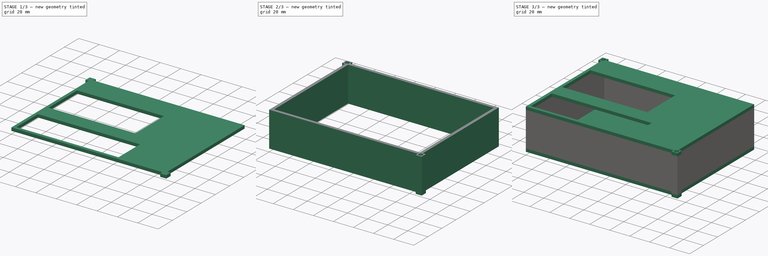
[diagram: build sequence overview — one tinted view per stage of 3, left to right]
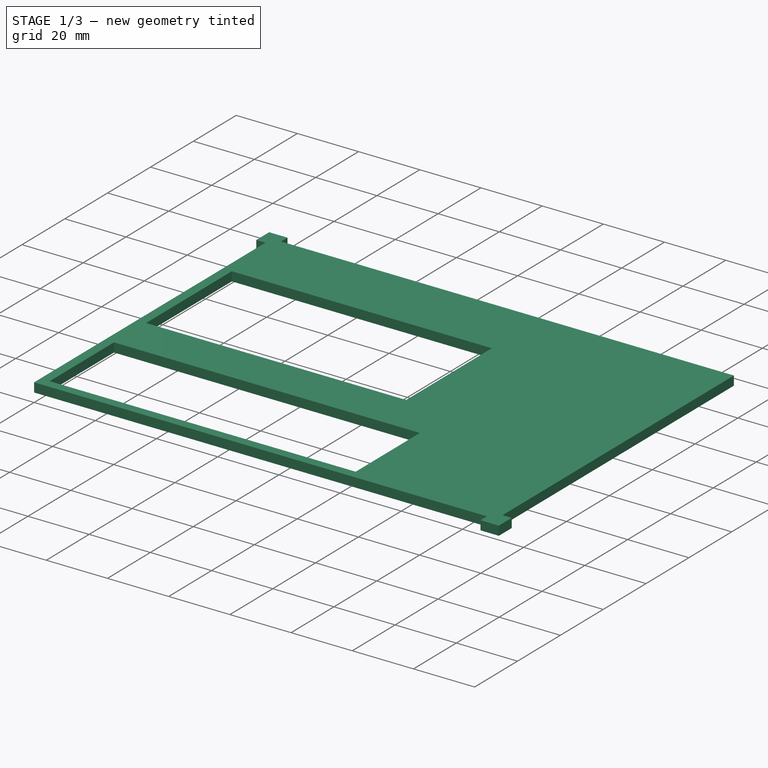
[diagram: stage 1 of 3 — iso view after this stage's code; geometry added in this stage tinted green]
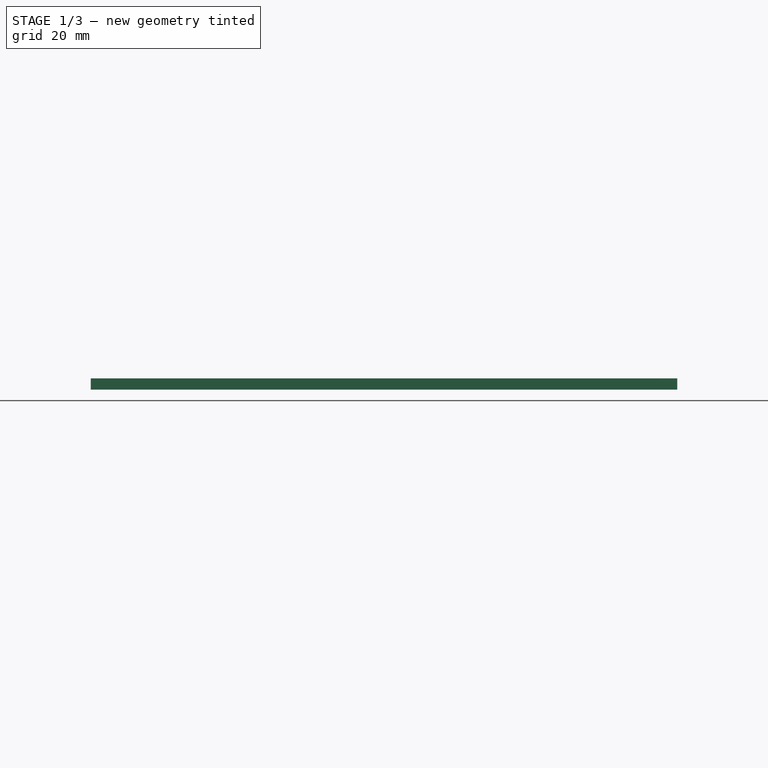
[diagram: stage 1 of 3 — front view after this stage's code; geometry added in this stage tinted green]
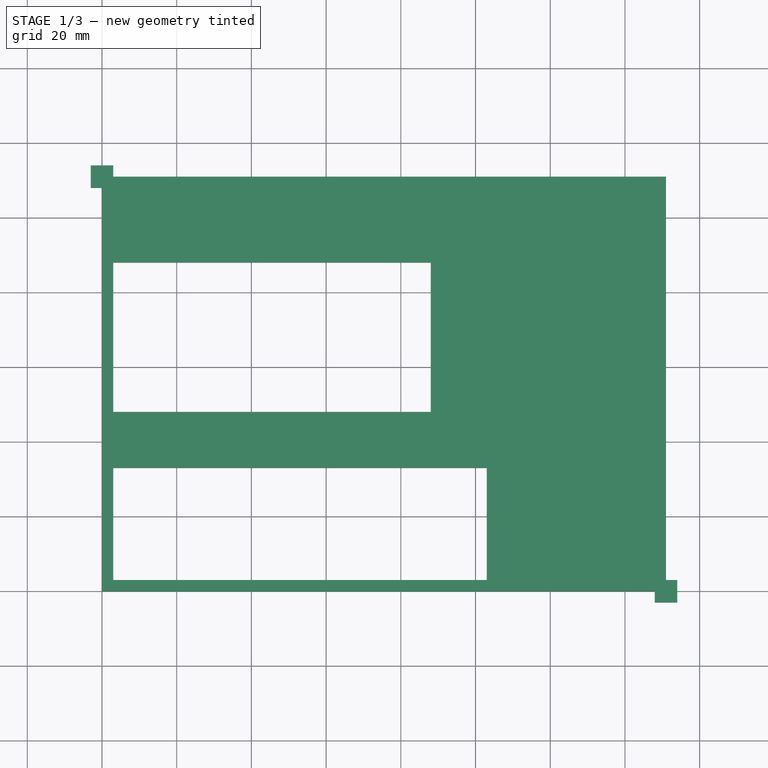
[diagram: stage 1 of 3 — top view after this stage's code; geometry added in this stage tinted green]
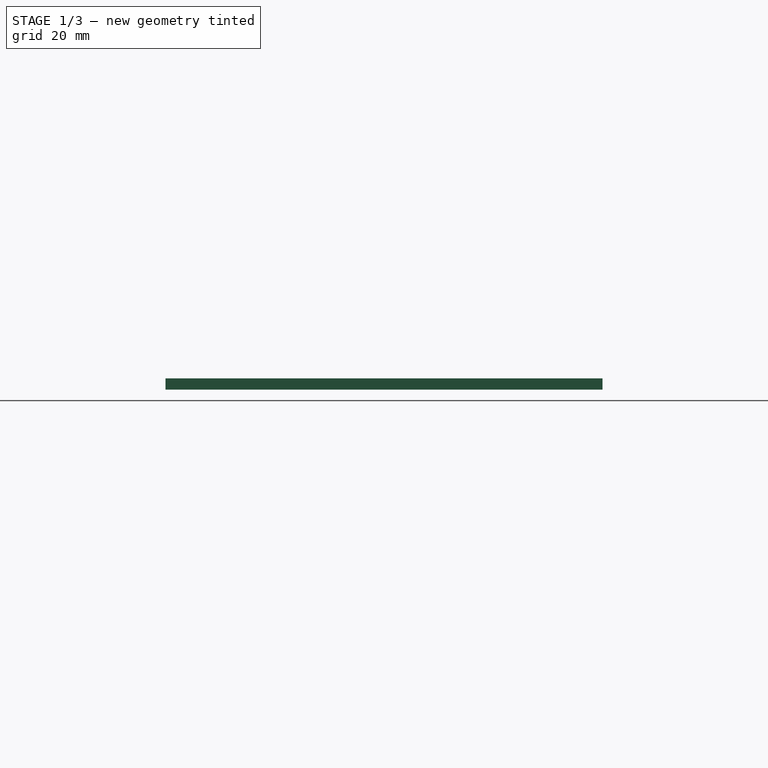
[diagram: stage 1 of 3 — right view after this stage's code; geometry added in this stage tinted green]
FCSTD DOCUMENT  (FreeCAD 0.20R29177 +426 (Git))
Label: FobCase
License: All rights reserved
LicenseURL: http://en.wikipedia.org/wiki/All_rights_reserved
objects: Part::Extrusion×5, Sketcher::SketchObject×4, Part::Cut×2, Part::MultiFuse×1
note: 12 computed .brp shape members not serialized (recipe doc carries the construction recipe); baked Part::Feature solids carry a one-line shape summary decoded from their .brp

FEATURE [Sketcher::SketchObject] Sketch
  FullyConstrained = true
  sketch-geometry (24):
    g0: LineSegment StartX=3 StartY=3 StartZ=0 EndX=148 EndY=3 EndZ=0
    g1: LineSegment StartX=148 StartY=3 StartZ=0 EndX=148 EndY=108 EndZ=0
    g2: LineSegment StartX=148 StartY=108 StartZ=0 EndX=3 EndY=108 EndZ=0
    g3: LineSegment StartX=3 StartY=108 StartZ=0 EndX=3 EndY=3 EndZ=0
    g4: LineSegment StartX=154 StartY=3 StartZ=0 EndX=154 EndY=-3 EndZ=0
    g5: LineSegment StartX=154 StartY=-3 StartZ=0 EndX=148 EndY=-3 EndZ=0
    g6: LineSegment StartX=148 StartY=-3 StartZ=0 EndX=148 EndY=0 EndZ=0
    g7: LineSegment StartX=148 StartY=0 StartZ=0 EndX=148 EndY=3 EndZ=0
    g8: LineSegment StartX=0 StartY=0 StartZ=0 EndX=148 EndY=0 EndZ=0
    g9: LineSegment StartX=148 StartY=0 StartZ=0 EndX=151 EndY=0 EndZ=0
    g10: LineSegment StartX=151 StartY=0 StartZ=0 EndX=151 EndY=3 EndZ=0
    g11: LineSegment StartX=151 StartY=3 StartZ=0 EndX=151 EndY=111 EndZ=0
    g12: LineSegment StartX=148 StartY=3 StartZ=0 EndX=151 EndY=3 EndZ=0
    g13: LineSegment StartX=151 StartY=3 StartZ=0 EndX=154 EndY=3 EndZ=0
    g14: LineSegment StartX=-3 StartY=108 StartZ=0 EndX=-3 EndY=114 EndZ=0
    g15: LineSegment StartX=-3 StartY=114 StartZ=0 EndX=3 EndY=114 EndZ=0
    g16: LineSegment StartX=3 StartY=108 StartZ=0 EndX=0 EndY=108 EndZ=0
    g17: LineSegment StartX=0 StartY=108 StartZ=0 EndX=-3 EndY=108 EndZ=0
    g18: LineSegment StartX=0 StartY=111 StartZ=0 EndX=0 EndY=108 EndZ=0
    g19: LineSegment StartX=0 StartY=108 StartZ=0 EndX=0 EndY=0 EndZ=0
    g20: LineSegment StartX=151 StartY=111 StartZ=0 EndX=3 EndY=111 EndZ=0
    g21: LineSegment StartX=3 StartY=111 StartZ=0 EndX=0 EndY=111 EndZ=0
    g22: LineSegment StartX=3 StartY=114 StartZ=0 EndX=3 EndY=111 EndZ=0
    g23: LineSegment StartX=3 StartY=111 StartZ=0 EndX=3 EndY=108 EndZ=0
  constraints (67):
    c: Coincident(g9,g10)
    c: Coincident(g11,g20)
    c: Coincident(g21,g18)
    c: Coincident(g19,g8)
    c: Coincident(g8,g-1)
    c: Coincident(g0,g1)
    c: Coincident(g1,g2)
    c: Coincident(g2,g3)
    c: Coincident(g3,g0)
    c: Horizontal(g0)
    c: Horizontal(g2)
    c: Vertical(g1)
    c: Vertical(g3)
    c: Distance(g0) = 145
    c: Distance(g3) = 105
    c: DistanceX(g8,g0) = 3
    c: DistanceY(g8,g0) = 3
    c: DistanceY(g1,g11) = 3
    c: DistanceX(g1,g11) = 3
    c: Coincident(g13,g4)
    c: Coincident(g4,g5)
    c: Coincident(g5,g6)
    c: Coincident(g7,g12)
    c: Horizontal(g5)
    c: Vertical(g4)
    c: Coincident(g12,g0)
    c: Coincident(g6,g7)
    c: Vertical(g6)
    c: Vertical(g7)
    c: Distance(g6,g7) = 6
    c: Coincident(g8,g9)
    c: Horizontal(g8)
    c: Horizontal(g9)
    c: Coincident(g10,g11)
    c: Vertical(g10)
    c: Vertical(g11)
    c: Coincident(g12,g13)
    c: Horizontal(g12)
    c: Horizontal(g13)
    c: Distance(g12,g13) = 6
    c: PointOnObject(g12,g11)
    c: PointOnObject(g10,g13)
    c: PointOnObject(g8,g6)
    c: PointOnObject(g6,g9)
    c: Coincident(g17,g14)
    c: Coincident(g14,g15)
    c: Coincident(g15,g22)
    c: Coincident(g23,g16)
    c: Horizontal(g15)
    c: Vertical(g14)
    c: Coincident(g16,g2)
    c: Coincident(g16,g17)
    c: Horizontal(g16)
    c: Horizontal(g17)
    c: Distance(g16,g17) = 6
    c: Coincident(g18,g19)
    c: Vertical(g18)
    c: Vertical(g19)
    c: Coincident(g20,g21)
    c: Horizontal(g20)
    c: Horizontal(g21)
    c: Coincident(g22,g23)
    c: Vertical(g22)
    c: Vertical(g23)
    c: Distance(g22,g23) = 6
    c: Coincident(g22,g20)
    c: Coincident(g16,g18)
FEATURE [Part::Extrusion] Extrude  label="Base"
  Base = -> Sketch
  Dir = (0,0,1)
  DirMode = 2
  FaceMakerClass = Part::FaceMakerBullseye
  LengthFwd = 3
  LengthRev = 0
  Solid = true
  Symmetric = false
FEATURE [Sketcher::SketchObject] Sketch001
  ExternalGeometry = -> [Extrude]
  FullyConstrained = true
  MapMode = 5
  Placement = pos=(0,0,3) rot=(0,0,1;0rad)
  Support = -> [Extrude]
  sketch-geometry (24):
    g0: LineSegment StartX=3 StartY=3 StartZ=0 EndX=148 EndY=3 EndZ=0
    g1: LineSegment StartX=148 StartY=3 StartZ=0 EndX=148 EndY=108 EndZ=0
    g2: LineSegment StartX=148 StartY=108 StartZ=0 EndX=3 EndY=108 EndZ=0
    g3: LineSegment StartX=3 StartY=108 StartZ=0 EndX=3 EndY=3 EndZ=0
    g4: LineSegment StartX=154 StartY=3 StartZ=0 EndX=154 EndY=-3 EndZ=0
    g5: LineSegment StartX=154 StartY=-3 StartZ=0 EndX=148 EndY=-3 EndZ=0
    g6: LineSegment StartX=0 StartY=0 StartZ=0 EndX=148 EndY=0 EndZ=0
    g7: LineSegment StartX=148 StartY=0 StartZ=0 EndX=151 EndY=0 EndZ=0
    g8: LineSegment StartX=148 StartY=-3 StartZ=0 EndX=148 EndY=0 EndZ=0
    g9: LineSegment StartX=148 StartY=0 StartZ=0 EndX=148 EndY=3 EndZ=0
    g10: LineSegment StartX=148 StartY=3 StartZ=0 EndX=151 EndY=3 EndZ=0
    g11: LineSegment StartX=151 StartY=3 StartZ=0 EndX=154 EndY=3 EndZ=0
    g12: LineSegment StartX=151 StartY=0 StartZ=0 EndX=151 EndY=3 EndZ=0
    g13: LineSegment StartX=151 StartY=3 StartZ=0 EndX=151 EndY=111 EndZ=0
    g14: LineSegment StartX=-3 StartY=108 StartZ=0 EndX=-3 EndY=114 EndZ=0
    g15: LineSegment StartX=-3 StartY=114 StartZ=0 EndX=3 EndY=114 EndZ=0
    g16: LineSegment StartX=3 StartY=114 StartZ=0 EndX=3 EndY=111 EndZ=0
    g17: LineSegment StartX=3 StartY=111 StartZ=0 EndX=3 EndY=108 EndZ=0
    g18: LineSegment StartX=151 StartY=111 StartZ=0 EndX=3 EndY=111 EndZ=0
    g19: LineSegment StartX=3 StartY=111 StartZ=0 EndX=0 EndY=111 EndZ=0
    g20: LineSegment StartX=0 StartY=111 StartZ=0 EndX=0 EndY=108 EndZ=0
    g21: LineSegment StartX=0 StartY=108 StartZ=0 EndX=0 EndY=0 EndZ=0
    g22: LineSegment StartX=3 StartY=108 StartZ=0 EndX=0 EndY=108 EndZ=0
    g23: LineSegment StartX=0 StartY=108 StartZ=0 EndX=-3 EndY=108 EndZ=0
  constraints (62):
    c: Coincident(g7,g12)
    c: Coincident(g13,g18)
    c: Coincident(g19,g20)
    c: Coincident(g21,g6)
    c: Coincident(g6,g-1)
    c: Coincident(g13,g-3)
    c: Coincident(g0,g1)
    c: Coincident(g1,g2)
    c: Coincident(g2,g3)
    c: Coincident(g3,g0)
    c: Horizontal(g0)
    c: Horizontal(g2)
    c: Vertical(g1)
    c: Vertical(g3)
    c: DistanceY(g1,g13) = 3
    c: DistanceX(g1,g13) = 3
    c: DistanceY(g6,g0) = 3
    c: DistanceX(g6,g0) = 3
    c: Coincident(g11,g4)
    c: Coincident(g4,g5)
    c: Coincident(g5,g8)
    c: Coincident(g9,g10)
    c: Horizontal(g5)
    c: Vertical(g4)
    c: Coincident(g10,g0)
    c: Coincident(g4,g-4)
    c: Coincident(g6,g7)
    c: Horizontal(g6)
    c: Horizontal(g7)
    c: Coincident(g8,g9)
    c: Vertical(g8)
    c: Vertical(g9)
    c: Coincident(g10,g11)
    c: Horizontal(g10)
    c: Horizontal(g11)
    c: Coincident(g12,g13)
    c: Vertical(g12)
    c: Vertical(g13)
    c: Coincident(g12,g10)
    c: Coincident(g6,g8)
    c: Coincident(g23,g14)
    c: Coincident(g14,g15)
    c: Coincident(g15,g16)
    c: Coincident(g17,g22)
    c: Horizontal(g15)
    c: Vertical(g14)
    c: Coincident(g22,g2)
    c: Coincident(g14,g-5)
    c: Coincident(g16,g17)
    c: Vertical(g16)
    c: Vertical(g17)
    c: Coincident(g18,g19)
    c: Horizontal(g18)
    c: Horizontal(g19)
    c: Coincident(g20,g21)
    c: Vertical(g20)
    c: Vertical(g21)
    c: Coincident(g22,g23)
    c: Horizontal(g22)
    c: Horizontal(g23)
    c: Coincident(g22,g20)
    c: Coincident(g16,g18)
FEATURE [Part::Extrusion] Extrude001  label="Walls"
  Base = -> Sketch001
  Dir = (0,0,1)
  DirMode = 2
  FaceMakerClass = Part::FaceMakerBullseye
  LengthFwd = 35
  LengthRev = 0
  Solid = true
  Symmetric = false
FEATURE [Sketcher::SketchObject] Sketch002
  ExternalGeometry = -> [Extrude001]
  FullyConstrained = true
  MapMode = 5
  Placement = pos=(0,0,38) rot=(0,0,1;0rad)
  Support = -> [Extrude001]
  sketch-geometry (28):
    g0: LineSegment StartX=3 StartY=3 StartZ=0 EndX=103 EndY=3 EndZ=0
    g1: LineSegment StartX=103 StartY=3 StartZ=0 EndX=103 EndY=33 EndZ=0
    g2: LineSegment StartX=103 StartY=33 StartZ=0 EndX=3 EndY=33 EndZ=0
    g3: LineSegment StartX=3 StartY=33 StartZ=0 EndX=3 EndY=3 EndZ=0
    g4: LineSegment StartX=3 StartY=48 StartZ=0 EndX=88 EndY=48 EndZ=0
    g5: LineSegment StartX=88 StartY=48 StartZ=0 EndX=88 EndY=88 EndZ=0
    g6: LineSegment StartX=88 StartY=88 StartZ=0 EndX=3 EndY=88 EndZ=0
    g7: LineSegment StartX=3 StartY=88 StartZ=0 EndX=3 EndY=48 EndZ=0
    g8: LineSegment StartX=154 StartY=3 StartZ=0 EndX=154 EndY=-3 EndZ=0
    g9: LineSegment StartX=154 StartY=-3 StartZ=0 EndX=148 EndY=-3 EndZ=0
    g10: LineSegment StartX=148 StartY=-3 StartZ=0 EndX=148 EndY=0 EndZ=0
    g11: LineSegment StartX=148 StartY=0 StartZ=0 EndX=148 EndY=3 EndZ=0
    g12: LineSegment StartX=151 StartY=0 StartZ=0 EndX=151 EndY=3 EndZ=0
    g13: LineSegment StartX=151 StartY=3 StartZ=0 EndX=151 EndY=111 EndZ=0
    g14: LineSegment StartX=148 StartY=3 StartZ=0 EndX=151 EndY=3 EndZ=0
    g15: LineSegment StartX=151 StartY=3 StartZ=0 EndX=154 EndY=3 EndZ=0
    g16: LineSegment StartX=0 StartY=0 StartZ=0 EndX=148 EndY=0 EndZ=0
    g17: LineSegment StartX=148 StartY=0 StartZ=0 EndX=151 EndY=0 EndZ=0
    g18: LineSegment StartX=-3 StartY=108 StartZ=0 EndX=-3 EndY=114 EndZ=0
    g19: LineSegment StartX=-3 StartY=114 StartZ=0 EndX=3 EndY=114 EndZ=0
    g20: LineSegment StartX=151 StartY=111 StartZ=0 EndX=3 EndY=111 EndZ=0
    g21: LineSegment StartX=3 StartY=111 StartZ=0 EndX=0 EndY=111 EndZ=0
    g22: LineSegment StartX=3 StartY=114 StartZ=0 EndX=3 EndY=111 EndZ=0
    g23: LineSegment StartX=3 StartY=111 StartZ=0 EndX=3 EndY=108 EndZ=0
    g24: LineSegment StartX=3 StartY=108 StartZ=0 EndX=0 EndY=108 EndZ=0
    g25: LineSegment StartX=0 StartY=108 StartZ=0 EndX=-3 EndY=108 EndZ=0
    g26: LineSegment StartX=0 StartY=111 StartZ=0 EndX=0 EndY=108 EndZ=0
    g27: LineSegment StartX=0 StartY=108 StartZ=0 EndX=0 EndY=0 EndZ=0
  constraints (73):
    c: Coincident(g17,g12)
    c: Coincident(g13,g20)
    c: Coincident(g21,g26)
    c: Coincident(g27,g16)
    c: Coincident(g0,g1)
    c: Coincident(g1,g2)
    c: Coincident(g2,g3)
    c: Coincident(g3,g0)
    c: Horizontal(g0)
    c: Horizontal(g2)
    c: Vertical(g1)
    c: Vertical(g3)
    c: Distance(g2) = 100
    c: Distance(g1) = 30
    c: Coincident(g4,g5)
    c: Coincident(g5,g6)
    c: Coincident(g6,g7)
    c: Coincident(g7,g4)
    c: Horizontal(g4)
    c: Horizontal(g6)
    c: Vertical(g5)
    c: Vertical(g7)
    c: Distance(g6) = 85
    c: Distance(g5) = 40
    c: DistanceY(g0,g4) = 45
    c: Coincident(g16,g-5)
    c: Coincident(g0,g-6)
    c: Coincident(g13,g-7)
    c: PointOnObject(g4,g-6)
    c: Coincident(g15,g8)
    c: Coincident(g8,g9)
    c: Coincident(g9,g10)
    c: Coincident(g11,g14)
    c: Horizontal(g9)
    c: Vertical(g8)
    c: Coincident(g14,g-8)
    c: Coincident(g8,g-3)
    c: Coincident(g10,g11)
    c: Vertical(g10)
    c: Vertical(g11)
    c: Coincident(g12,g13)
    c: Vertical(g12)
    c: Vertical(g13)
    c: Coincident(g14,g15)
    c: Horizontal(g14)
    c: Horizontal(g15)
    c: Coincident(g16,g17)
    c: Horizontal(g16)
    c: Horizontal(g17)
    c: Coincident(g16,g10)
    c: Coincident(g12,g14)
    c: Coincident(g25,g18)
    c: Coincident(g18,g19)
    c: Coincident(g19,g22)
    c: Coincident(g23,g24)
    c: Horizontal(g19)
    c: Vertical(g18)
    c: Coincident(g24,g-6)
    c: Coincident(g18,g-4)
    c: Coincident(g20,g21)
    c: Horizontal(g20)
    c: Horizontal(g21)
    c: Coincident(g22,g23)
    c: Vertical(g22)
    c: Vertical(g23)
    c: Coincident(g24,g25)
    c: Horizontal(g24)
    c: Horizontal(g25)
    c: Coincident(g26,g27)
    c: Vertical(g26)
    c: Vertical(g27)
    c: Coincident(g20,g22)
    c: Coincident(g24,g26)
FEATURE [Part::Extrusion] Extrude002  label="Top"
  Base = -> Sketch002
  Dir = (0,0,1)
  DirMode = 2
  FaceMakerClass = Part::FaceMakerBullseye
  LengthFwd = 3
  LengthRev = 0
  Solid = true
  Symmetric = false
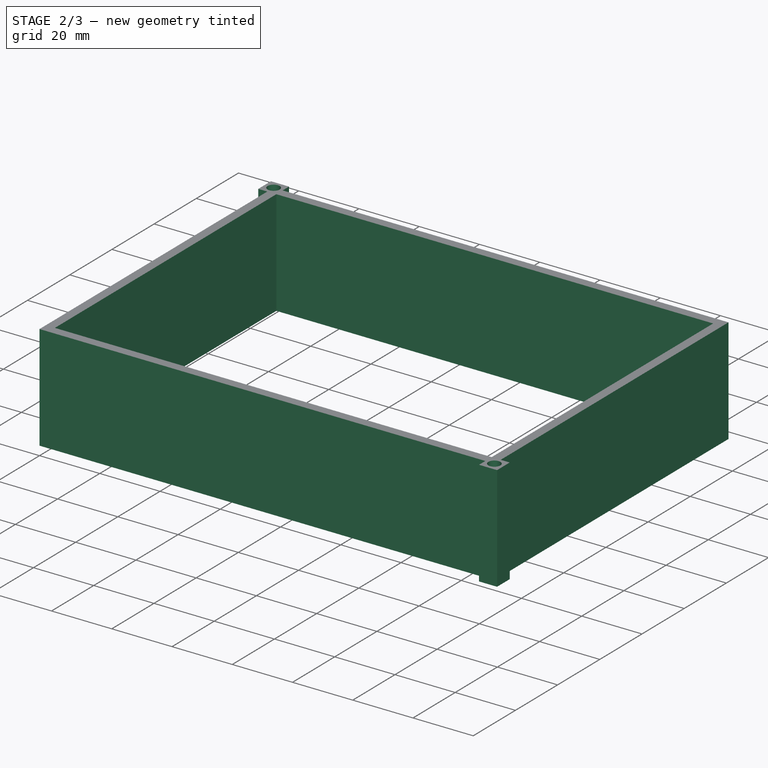
[diagram: stage 2 of 3 — iso view after this stage's code; geometry added in this stage tinted green]
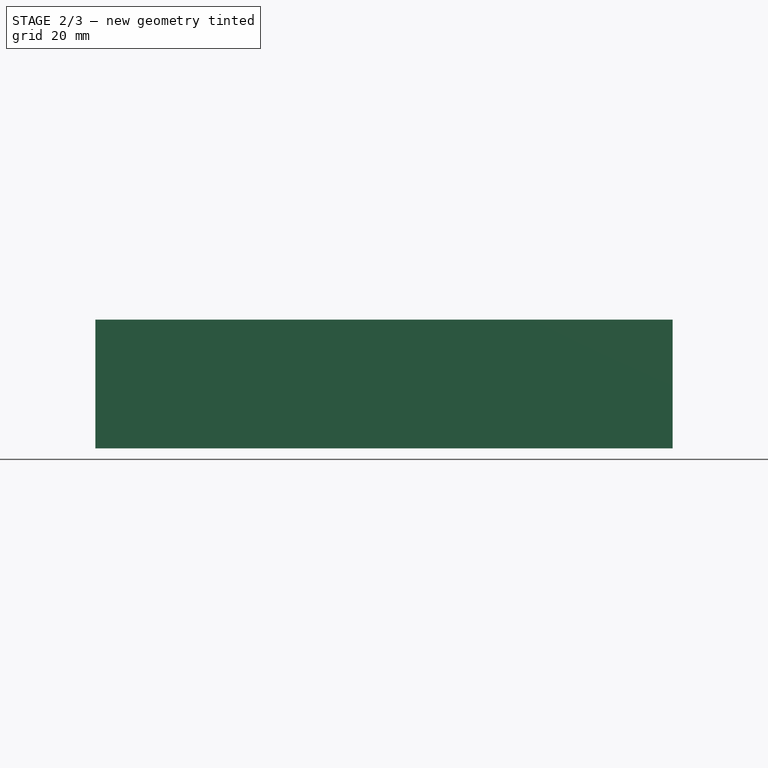
[diagram: stage 2 of 3 — front view after this stage's code; geometry added in this stage tinted green]
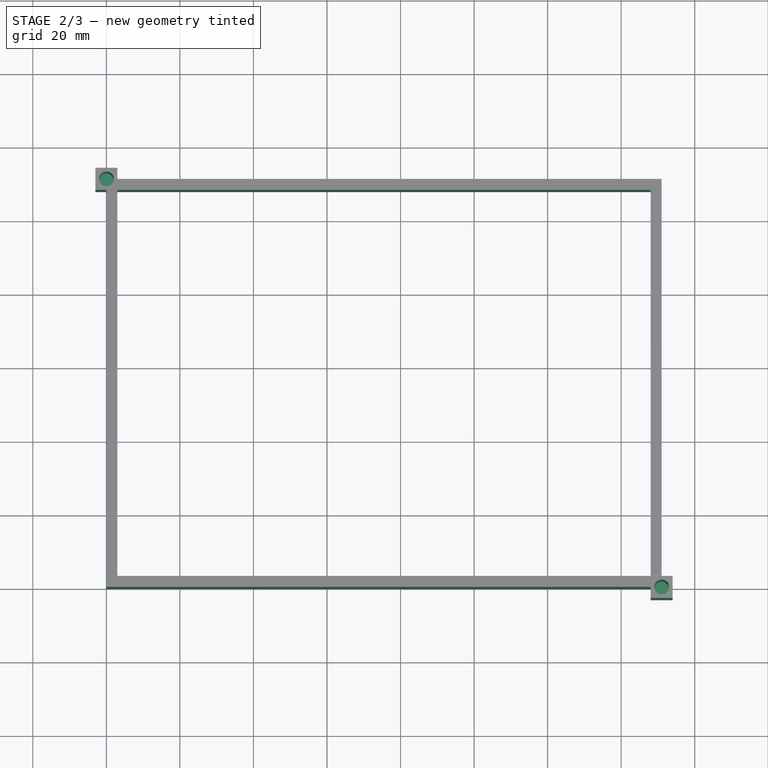
[diagram: stage 2 of 3 — top view after this stage's code; geometry added in this stage tinted green]
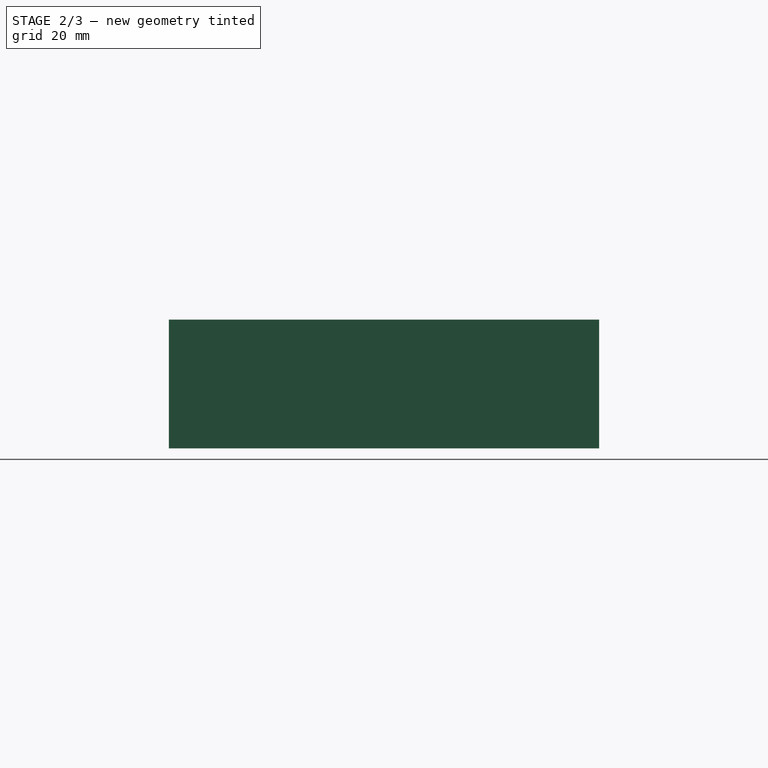
[diagram: stage 2 of 3 — right view after this stage's code; geometry added in this stage tinted green]
FEATURE [Part::Extrusion] Extrude004  label="ScrewsWalls"
  Base = -> Sketch003
  Dir = (0,0,1)
  DirMode = 2
  FaceMakerClass = Part::FaceMakerBullseye
  LengthFwd = 0
  LengthRev = 35
  Solid = true
  Symmetric = false
FEATURE [Part::Cut] Cut001  label="WallsWithScrews"
  Base = -> Extrude001
  Tool = -> Extrude004
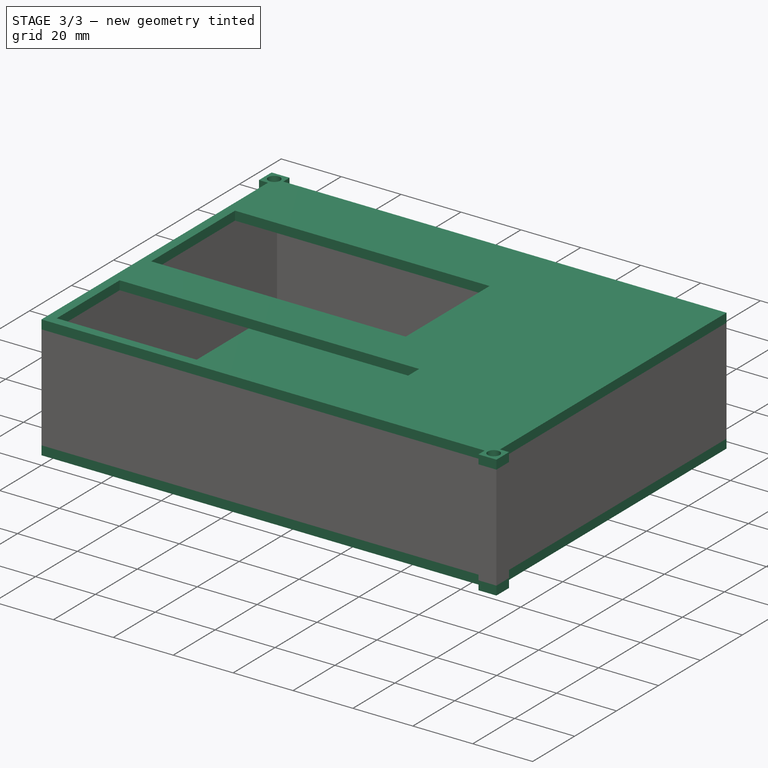
[diagram: stage 3 of 3 — iso view after this stage's code; geometry added in this stage tinted green]
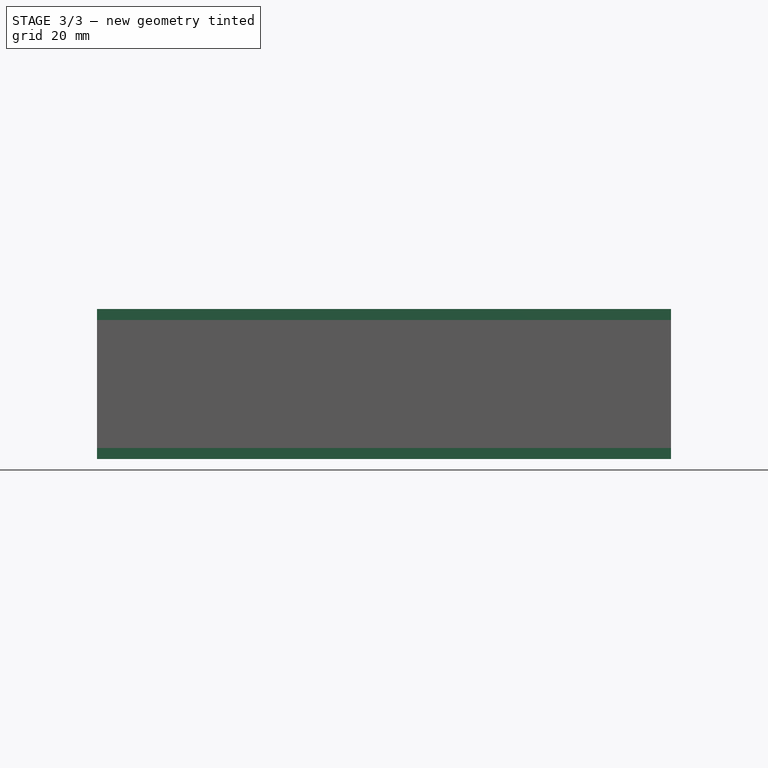
[diagram: stage 3 of 3 — front view after this stage's code; geometry added in this stage tinted green]
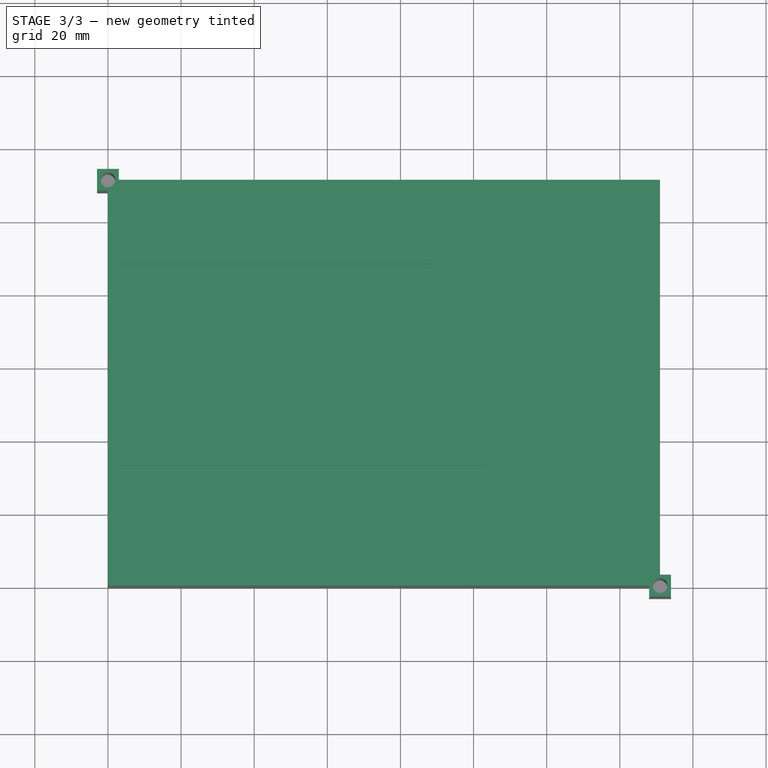
[diagram: stage 3 of 3 — top view after this stage's code; geometry added in this stage tinted green]
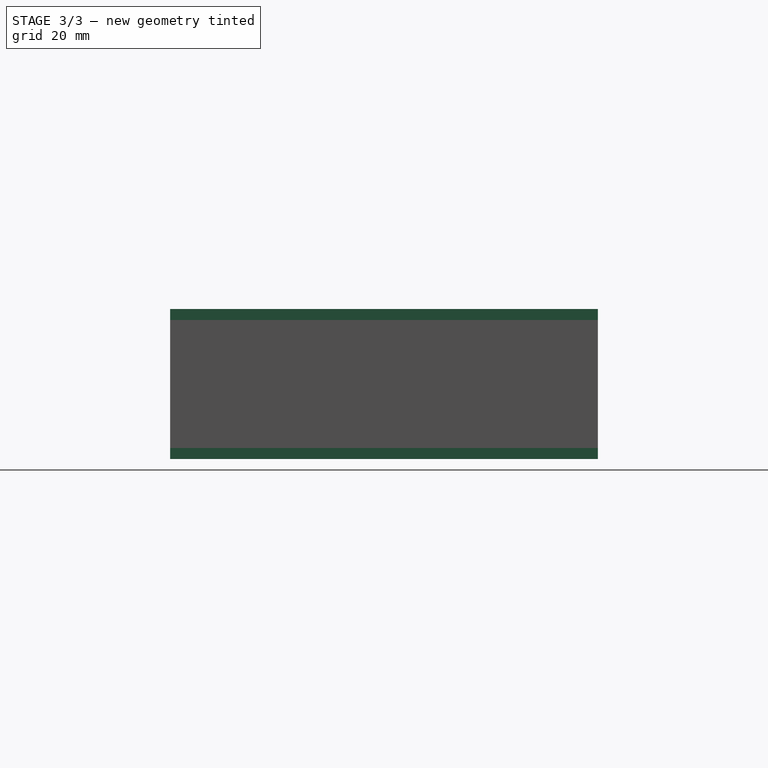
[diagram: stage 3 of 3 — right view after this stage's code; geometry added in this stage tinted green]
FEATURE [Sketcher::SketchObject] Sketch003
  ExternalGeometry = -> [Extrude002]
  FullyConstrained = true
  MapMode = 5
  Placement = pos=(0,0,41) rot=(0,0,1;0rad)
  Support = -> [Extrude002]
  sketch-geometry (6):
    g0: LineSegment StartX=151 StartY=3 StartZ=0 EndX=151 EndY=-3 EndZ=0
    g1: LineSegment StartX=148 StartY=0 StartZ=0 EndX=154 EndY=0 EndZ=0
    g2: Circle CenterX=151 CenterY=0 CenterZ=0 NormalX=0 NormalY=0 NormalZ=1 AngleXU=0 Radius=2
    g3: LineSegment StartX=3 StartY=111 StartZ=0 EndX=-3 EndY=111 EndZ=0
    g4: LineSegment StartX=0 StartY=108 StartZ=0 EndX=0 EndY=114 EndZ=0
    g5: Circle CenterX=2e-16 CenterY=111 CenterZ=0 NormalX=0 NormalY=0 NormalZ=1 AngleXU=0 Radius=2
  constraints (18):
    c: Coincident(g0,g-6)
    c: PointOnObject(g0,g-4)
    c: Vertical(g0)
    c: Coincident(g1,g-5)
    c: PointOnObject(g1,g-3)
    c: Horizontal(g1)
    c: PointOnObject(g2,g1)
    c: PointOnObject(g2,g0)
    c: Diameter(g2) = 4
    c: Coincident(g3,g-7)
    c: PointOnObject(g3,g-9)
    c: Horizontal(g3)
    c: Coincident(g4,g-8)
    c: PointOnObject(g4,g-10)
    c: Vertical(g4)
    c: PointOnObject(g5,g3)
    c: PointOnObject(g5,g4)
    c: Diameter(g5) = 4
FEATURE [Part::Extrusion] Extrude003  label="ScrewsTop"
  Base = -> Sketch003
  Dir = (0,0,1)
  DirMode = 2
  FaceMakerClass = Part::FaceMakerBullseye
  LengthFwd = 0
  LengthRev = 35
  Solid = true
  Symmetric = false
FEATURE [Part::Cut] Cut  label="TopWithScrews"
  Base = -> Extrude002
  Tool = -> Extrude003
FEATURE [Part::MultiFuse] Fusion  label="BaseWallsScrews"
  Shapes = -> [Cut001,Extrude]
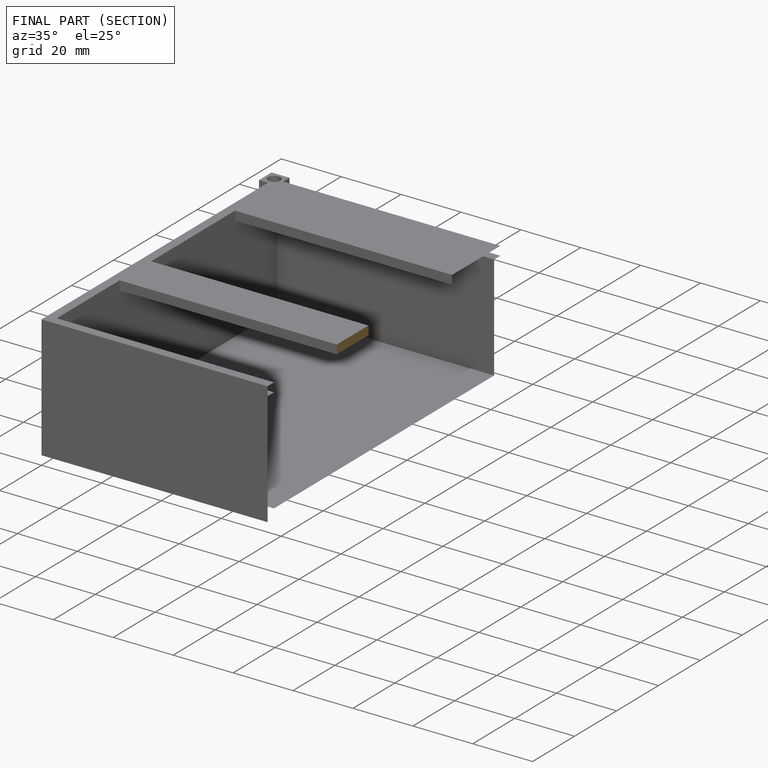
[diagram: finished part — half-section view (interior)]
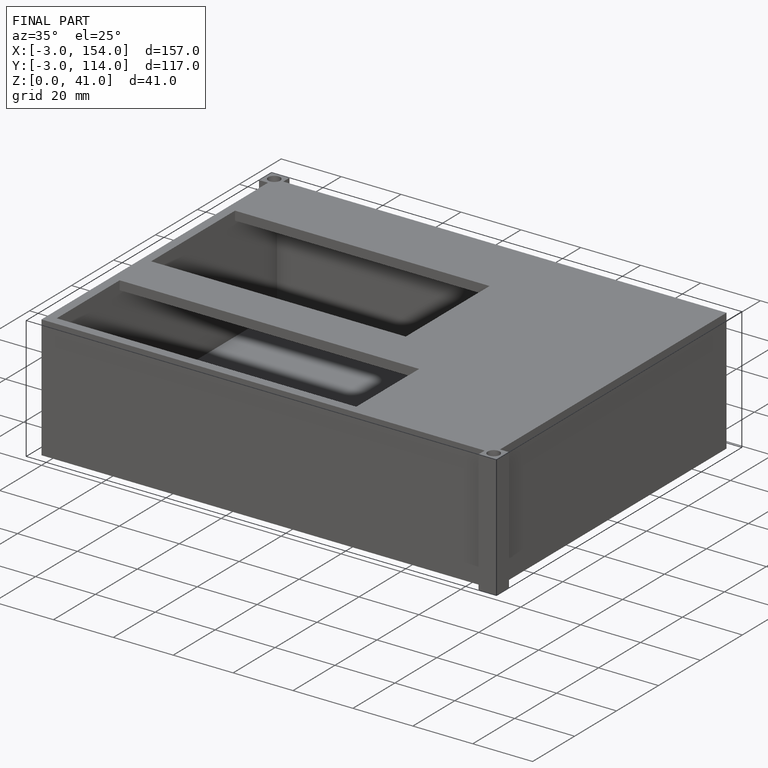
[diagram: finished part — iso view with bounding-box wireframe]
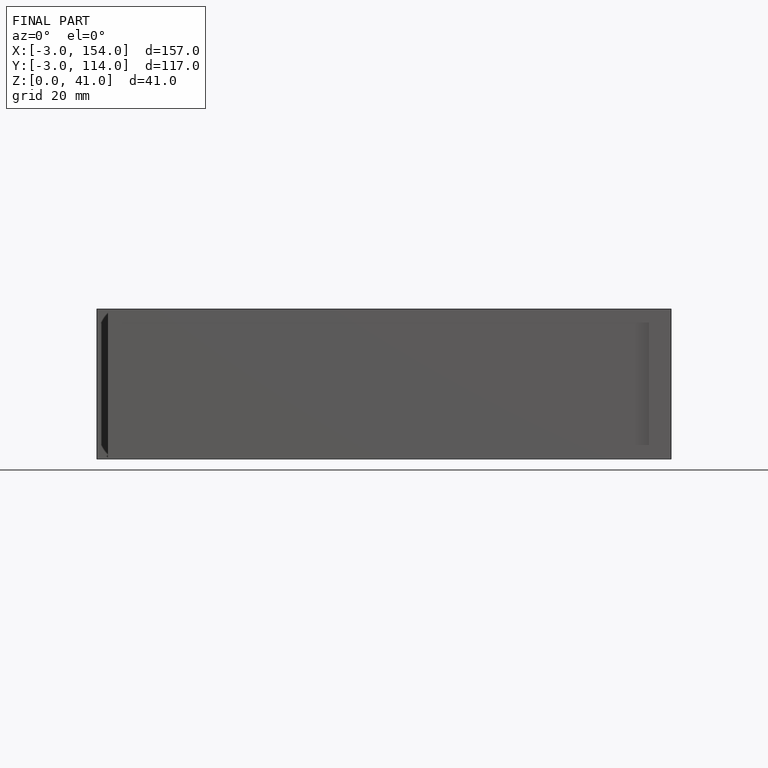
[diagram: finished part — front view with bounding-box wireframe]
